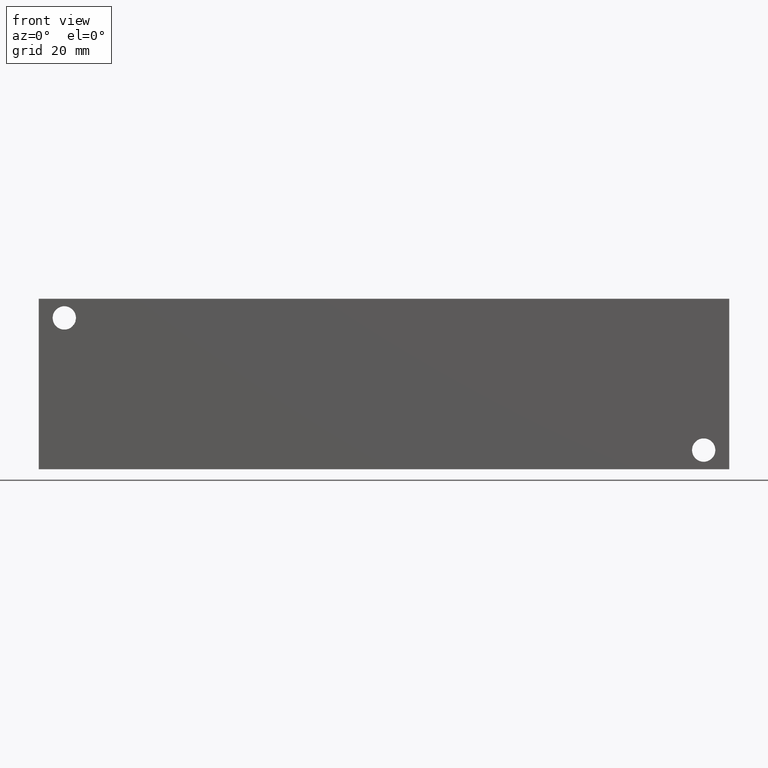
[diagram: clean part render]
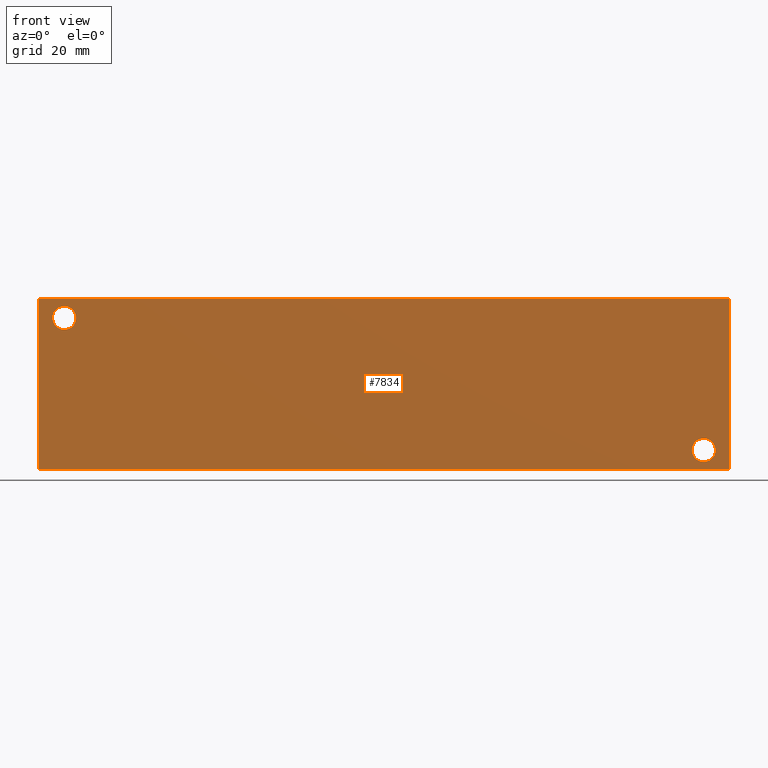
[diagram: same view with one face highlighted and labeled with its STEP entity id]
A machine part, front view. The second image highlights one B-rep face of the part: STEP entity #7834.
In plain terms, the highlighted planar face has unit normal (0, -1, 0).
Its self-contained STEP definition (entity closure, byte-faithful):
#205=CIRCLE('',#8253,4.3688);
#206=CIRCLE('',#8254,4.3688);
#208=CIRCLE('',#8262,4.3688);
#209=CIRCLE('',#8263,4.3688);
#258=FACE_BOUND('',#1416,.T.);
#259=FACE_BOUND('',#1417,.T.);
#972=FACE_OUTER_BOUND('',#1415,.T.);
#1415=EDGE_LOOP('',(#6872,#6873,#6874,#6875));
#1416=EDGE_LOOP('',(#6876,#6877));
#1417=EDGE_LOOP('',(#6878,#6879));
#1716=LINE('',#12116,#2458);
#2160=LINE('',#13437,#2902);
#2165=LINE('',#13446,#2907);
#2166=LINE('',#13448,#2908);
#2458=VECTOR('',#8727,10.);
#2902=VECTOR('',#9871,10.);
#2907=VECTOR('',#9880,10.);
#2908=VECTOR('',#9883,10.);
#3231=VERTEX_POINT('',#12114);
#3232=VERTEX_POINT('',#12115);
#3618=VERTEX_POINT('',#13390);
#3619=VERTEX_POINT('',#13391);
#3623=VERTEX_POINT('',#13406);
#3624=VERTEX_POINT('',#13407);
#3631=VERTEX_POINT('',#13435);
#3633=VERTEX_POINT('',#13444);
#4117=EDGE_CURVE('',#3231,#3232,#1716,.T.);
#4689=EDGE_CURVE('',#3618,#3619,#205,.T.);
#4690=EDGE_CURVE('',#3619,#3618,#206,.T.);
#4698=EDGE_CURVE('',#3623,#3624,#208,.T.);
#4699=EDGE_CURVE('',#3624,#3623,#209,.T.);
#4714=EDGE_CURVE('',#3631,#3231,#2160,.T.);
#4719=EDGE_CURVE('',#3633,#3232,#2165,.T.);
#4720=EDGE_CURVE('',#3631,#3633,#2166,.T.);
#6872=ORIENTED_EDGE('',*,*,#4720,.T.);
#6873=ORIENTED_EDGE('',*,*,#4719,.T.);
#6874=ORIENTED_EDGE('',*,*,#4117,.F.);
#6875=ORIENTED_EDGE('',*,*,#4714,.F.);
#6876=ORIENTED_EDGE('',*,*,#4689,.T.);
#6877=ORIENTED_EDGE('',*,*,#4690,.T.);
#6878=ORIENTED_EDGE('',*,*,#4698,.T.);
#6879=ORIENTED_EDGE('',*,*,#4699,.T.);
#7124=PLANE('',#8279);
#7834=ADVANCED_FACE('',(#972,#258,#259),#7124,.T.);
#8253=AXIS2_PLACEMENT_3D('',#13392,#9814,#9815);
#8254=AXIS2_PLACEMENT_3D('',#13393,#9816,#9817);
#8262=AXIS2_PLACEMENT_3D('',#13408,#9834,#9835);
#8263=AXIS2_PLACEMENT_3D('',#13409,#9836,#9837);
#8279=AXIS2_PLACEMENT_3D('',#13447,#9881,#9882);
#8727=DIRECTION('',(1.,0.,0.));
#9814=DIRECTION('center_axis',(0.,1.,0.));
#9815=DIRECTION('ref_axis',(1.,0.,0.));
#9816=DIRECTION('center_axis',(0.,1.,0.));
#9817=DIRECTION('ref_axis',(1.,0.,0.));
#9834=DIRECTION('center_axis',(0.,1.,0.));
#9835=DIRECTION('ref_axis',(1.,0.,0.));
#9836=DIRECTION('center_axis',(0.,1.,0.));
#9837=DIRECTION('ref_axis',(1.,0.,0.));
#9871=DIRECTION('',(0.,0.,1.));
#9880=DIRECTION('',(0.,0.,1.));
#9881=DIRECTION('center_axis',(0.,-1.,0.));
#9882=DIRECTION('ref_axis',(1.,0.,0.));
#9883=DIRECTION('',(1.,0.,0.));
#12114=CARTESIAN_POINT('',(0.,0.,63.5));
#12115=CARTESIAN_POINT('',(257.175,0.,63.5));
#12116=CARTESIAN_POINT('',(0.,0.,63.5));
#13390=CARTESIAN_POINT('',(13.8938,0.,56.3626));
#13391=CARTESIAN_POINT('',(5.1562,0.,56.3626));
#13392=CARTESIAN_POINT('Origin',(9.525,0.,56.3626));
#13393=CARTESIAN_POINT('Origin',(9.525,0.,56.3626));
#13406=CARTESIAN_POINT('',(252.0188,0.,7.1374));
#13407=CARTESIAN_POINT('',(243.2812,0.,7.1374));
#13408=CARTESIAN_POINT('Origin',(247.65,0.,7.1374));
#13409=CARTESIAN_POINT('Origin',(247.65,0.,7.1374));
#13435=CARTESIAN_POINT('',(0.,0.,0.));
#13437=CARTESIAN_POINT('',(0.,0.,0.));
#13444=CARTESIAN_POINT('',(257.175,0.,0.));
#13446=CARTESIAN_POINT('',(257.175,0.,0.));
#13447=CARTESIAN_POINT('Origin',(0.,0.,0.));
#13448=CARTESIAN_POINT('',(0.,0.,0.));